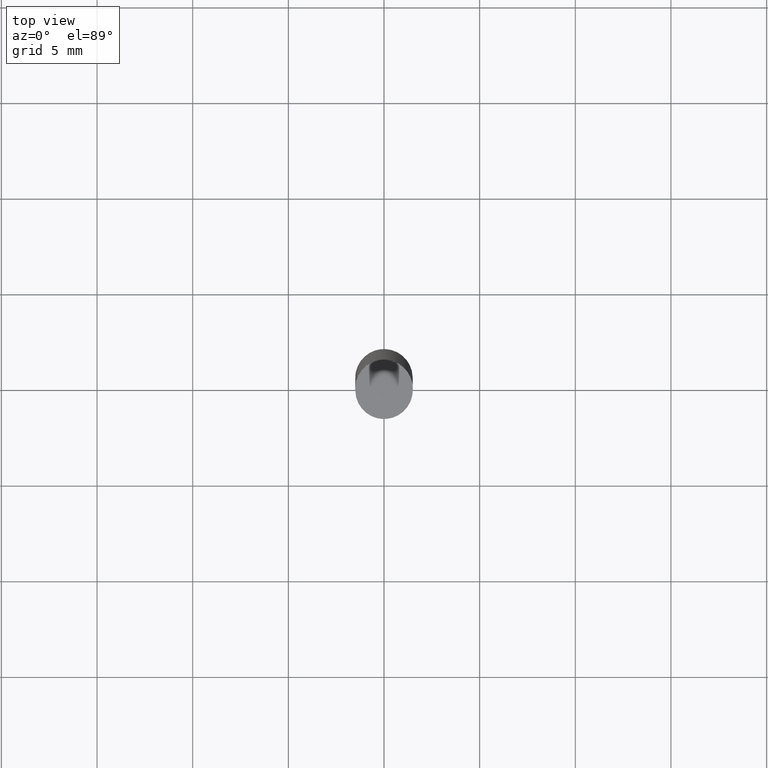
[diagram: clean part render]
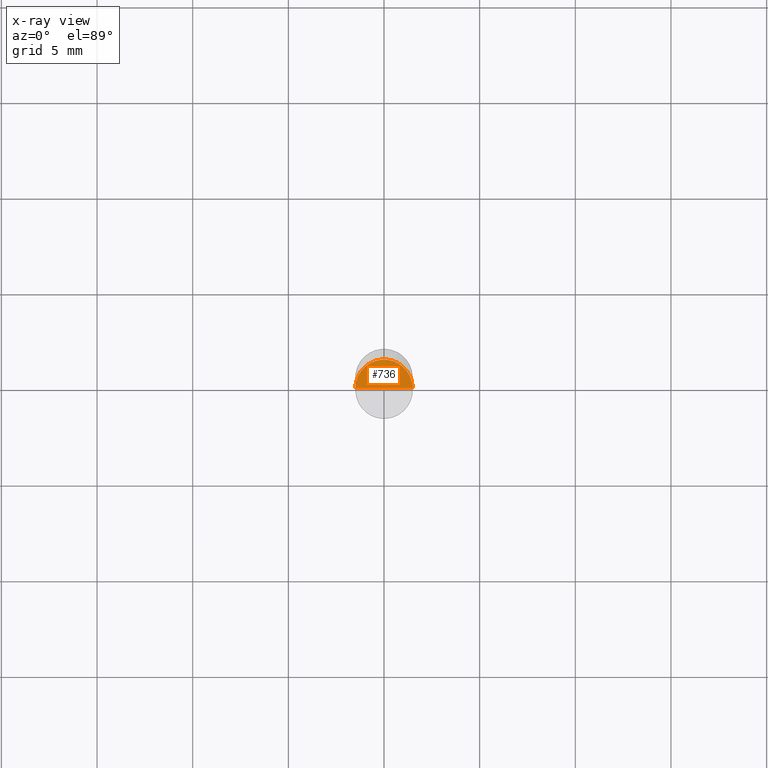
[diagram: x-ray — body ghosted, one internal face saturated and labeled with its STEP entity id]
A machine part, top view, then the same camera in x-ray: the body is ghosted and one INTERNAL B-rep face — a face not visible from any outside direction — is saturated and labeled: STEP entity #736.
In plain terms, the highlighted face is a freeform B-spline surface patch.
Its self-contained STEP definition (entity closure, byte-faithful):
#579=CARTESIAN_POINT('',(1.5,0.0,0.0));
#580=CARTESIAN_POINT('',(1.5,1.5,0.0));
#581=CARTESIAN_POINT('',(0.0,1.5,0.0));
#582=CARTESIAN_POINT('',(-1.5,1.5,0.0));
#583=CARTESIAN_POINT('',(-1.5,0.0,0.0));
#584=CARTESIAN_POINT('',(0.0,0.0,0.0));
#721=(
BOUNDED_SURFACE()
B_SPLINE_SURFACE(1,2,(
(#584,#584,#584,#584,#584),
(#579,#580,#581,#582,#583)
), .UNSPECIFIED.,.F.,.F.,.F.)
B_SPLINE_SURFACE_WITH_KNOTS((2,2),(3,2,3),(
0.0,1.0),(
0.0,0.5,1.0), .UNSPECIFIED.)
GEOMETRIC_REPRESENTATION_ITEM()
RATIONAL_B_SPLINE_SURFACE(((1.0,0.707106781187,1.0,0.707106781187,1.0),
(1.0,0.707106781187,1.0,0.707106781187,1.0)
))
REPRESENTATION_ITEM('')
SURFACE()
);
#722=(
BOUNDED_CURVE()
B_SPLINE_CURVE(1,(#583,#584),.UNSPECIFIED.,.F.,.F.)
B_SPLINE_CURVE_WITH_KNOTS((2,2),
(0.0,1.0),.UNSPECIFIED.)
CURVE()
GEOMETRIC_REPRESENTATION_ITEM()
RATIONAL_B_SPLINE_CURVE((1.0,1.0))
REPRESENTATION_ITEM('')
);
#723=(
BOUNDED_CURVE()
B_SPLINE_CURVE(1,(#584,#579),.UNSPECIFIED.,.F.,.F.)
B_SPLINE_CURVE_WITH_KNOTS((2,2),
(0.0,1.0),.UNSPECIFIED.)
CURVE()
GEOMETRIC_REPRESENTATION_ITEM()
RATIONAL_B_SPLINE_CURVE((1.0,1.0))
REPRESENTATION_ITEM('')
);
#724=(
BOUNDED_CURVE()
B_SPLINE_CURVE(2,(#579,#580,#581,#582,#583),.UNSPECIFIED.,.F.,.F.)
B_SPLINE_CURVE_WITH_KNOTS((3,2,3),
(0.0,0.5,1.0),.UNSPECIFIED.)
CURVE()
GEOMETRIC_REPRESENTATION_ITEM()
RATIONAL_B_SPLINE_CURVE((1.0,0.707106781187,1.0,0.707106781187,1.0))
REPRESENTATION_ITEM('')
);
#725=VERTEX_POINT('',#579);
#726=VERTEX_POINT('',#583);
#727=VERTEX_POINT('',#584);
#728=EDGE_CURVE('',#726,#727,#722,.T.);
#729=EDGE_CURVE('',#727,#725,#723,.T.);
#730=EDGE_CURVE('',#725,#726,#724,.T.);
#731=ORIENTED_EDGE('',*,*,#728,.T.);
#732=ORIENTED_EDGE('',*,*,#729,.T.);
#733=ORIENTED_EDGE('',*,*,#730,.T.);
#734=EDGE_LOOP('',(#731,#732,#733));
#735=FACE_OUTER_BOUND('',#734,.T.);
#736=ADVANCED_FACE('',(#735),#721,.T.);